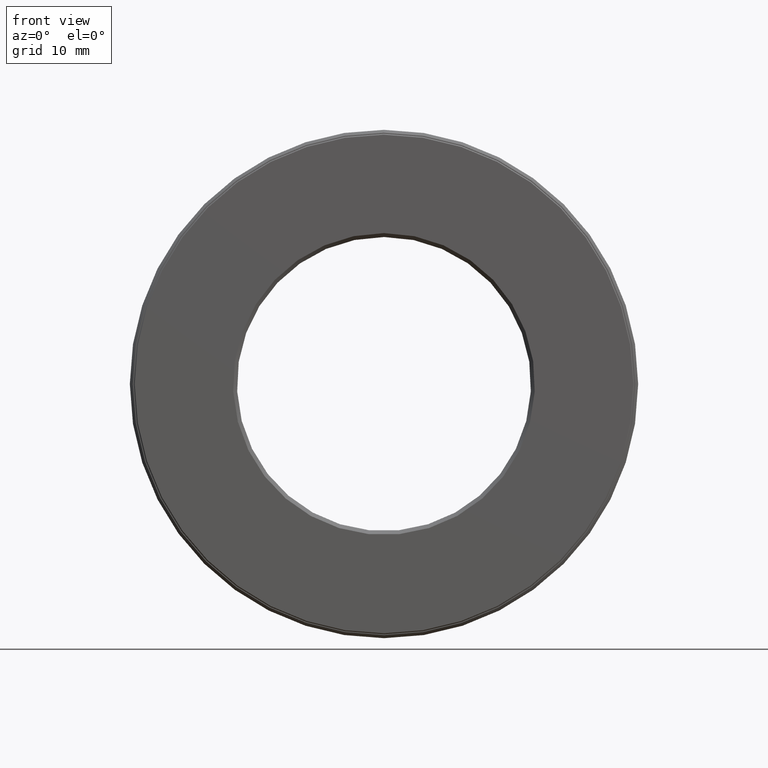
[diagram: clean part render]
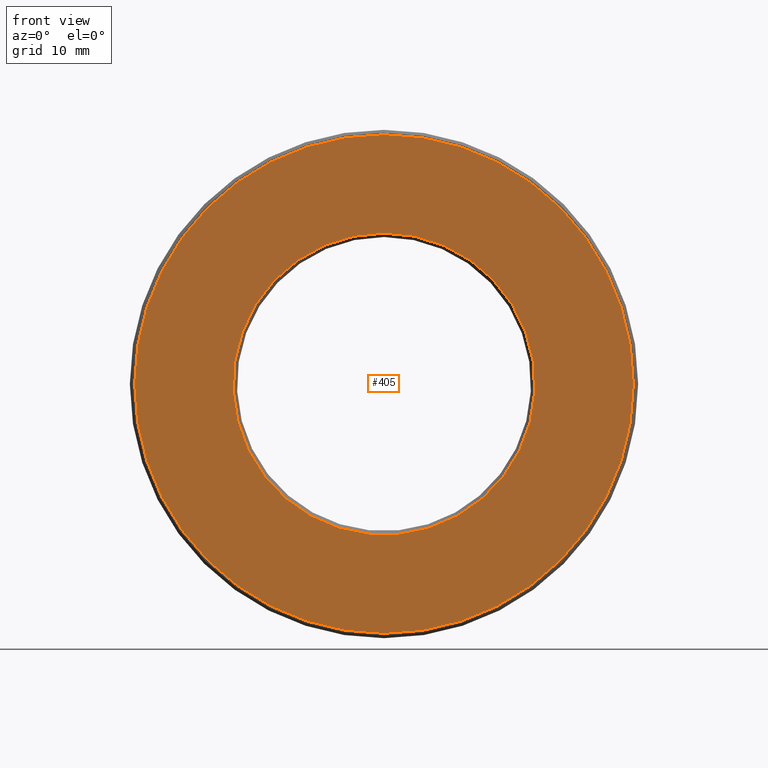
[diagram: same view with one face highlighted and labeled with its STEP entity id]
A machine part, front view. The second image highlights one B-rep face of the part: STEP entity #405.
In plain terms, the highlighted planar face has unit normal (-0, 1, 0).
Its self-contained STEP definition (entity closure, byte-faithful):
#38 = VERTEX_POINT ( 'NONE', #463 ) ;
#117 = EDGE_LOOP ( 'NONE', ( #387 ) ) ;
#132 = EDGE_LOOP ( 'NONE', ( #389 ) ) ;
#158 = DIRECTION ( 'NONE',  ( 0.0000000000000000000, 0.0000000000000000000, 1.000000000000000000 ) ) ;
#164 = PLANE ( 'NONE',  #444 ) ;
#166 = FACE_BOUND ( 'NONE', #117, .T. ) ;
#186 = CARTESIAN_POINT ( 'NONE',  ( 0.0000000000000000000, -6.936332796413168700E-017, 1.271874999999999900 ) ) ;
#198 = DIRECTION ( 'NONE',  ( 0.0000000000000000000, 0.0000000000000000000, 1.000000000000000000 ) ) ;
#199 = CARTESIAN_POINT ( 'NONE',  ( 0.0000000000000000000, 0.0000000000000000000, 0.0000000000000000000 ) ) ;
#240 = DIRECTION ( 'NONE',  ( -0.0000000000000000000, 1.000000000000000000, 0.0000000000000000000 ) ) ;
#261 = CIRCLE ( 'NONE', #352, 1.271874999999999900 ) ;
#274 = VERTEX_POINT ( 'NONE', #186 ) ;
#288 = CARTESIAN_POINT ( 'NONE',  ( -1.470819718715328300E-032, -3.468166398206584400E-017, 0.0000000000000000000 ) ) ;
#291 = DIRECTION ( 'NONE',  ( 0.0000000000000000000, 0.0000000000000000000, 1.000000000000000000 ) ) ;
#316 = AXIS2_PLACEMENT_3D ( 'NONE', #199, #432, #158 ) ;
#352 = AXIS2_PLACEMENT_3D ( 'NONE', #473, #574, #198 ) ;
#387 = ORIENTED_EDGE ( 'NONE', *, *, #447, .T. ) ;
#389 = ORIENTED_EDGE ( 'NONE', *, *, #433, .F. ) ;
#405 = ADVANCED_FACE ( 'NONE', ( #535, #166 ), #164, .F. ) ;
#432 = DIRECTION ( 'NONE',  ( -0.0000000000000000000, 1.000000000000000000, -0.0000000000000000000 ) ) ;
#433 = EDGE_CURVE ( 'NONE', #274, #274, #261, .T. ) ;
#444 = AXIS2_PLACEMENT_3D ( 'NONE', #288, #240, #291 ) ;
#447 = EDGE_CURVE ( 'NONE', #38, #38, #542, .T. ) ;
#463 = CARTESIAN_POINT ( 'NONE',  ( 0.0000000000000000000, 0.0000000000000000000, 0.7700000000000002400 ) ) ;
#473 = CARTESIAN_POINT ( 'NONE',  ( 0.0000000000000000000, -6.936332796413168700E-017, 0.0000000000000000000 ) ) ;
#535 = FACE_OUTER_BOUND ( 'NONE', #132, .T. ) ;
#542 = CIRCLE ( 'NONE', #316, 0.7700000000000002400 ) ;
#574 = DIRECTION ( 'NONE',  ( -0.0000000000000000000, 1.000000000000000000, -0.0000000000000000000 ) ) ;